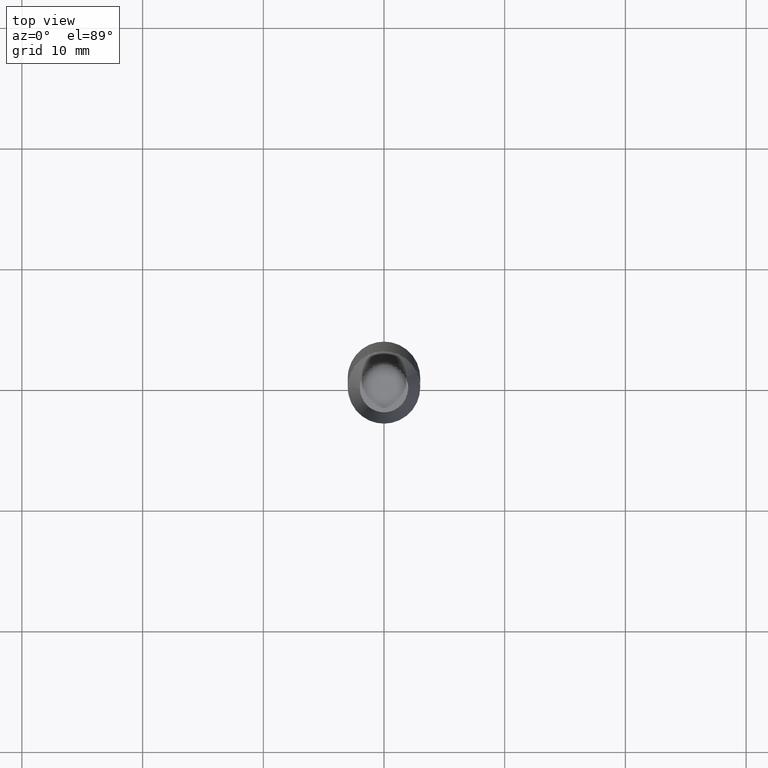
[diagram: clean part render]
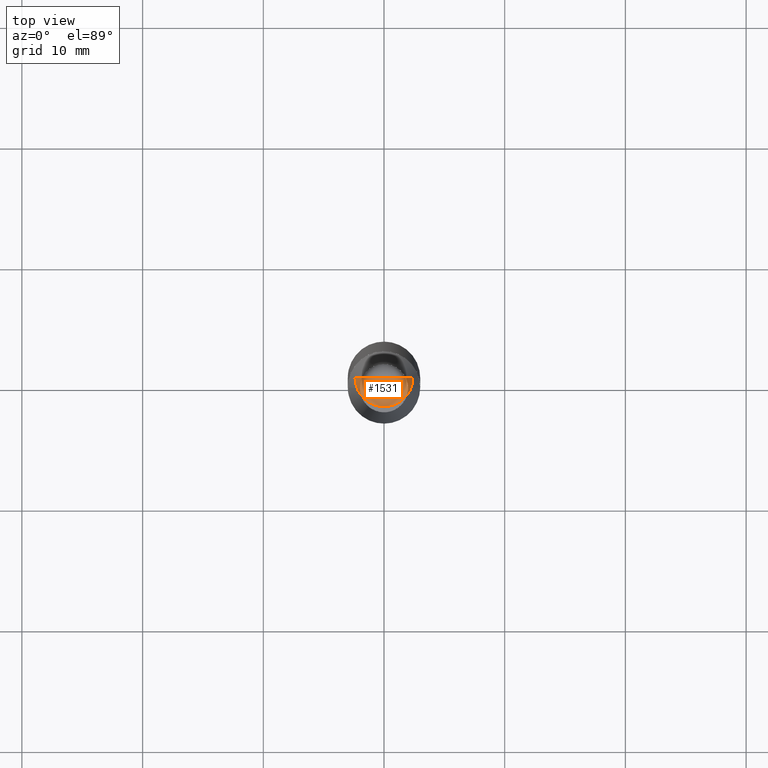
[diagram: same view with one face highlighted and labeled with its STEP entity id]
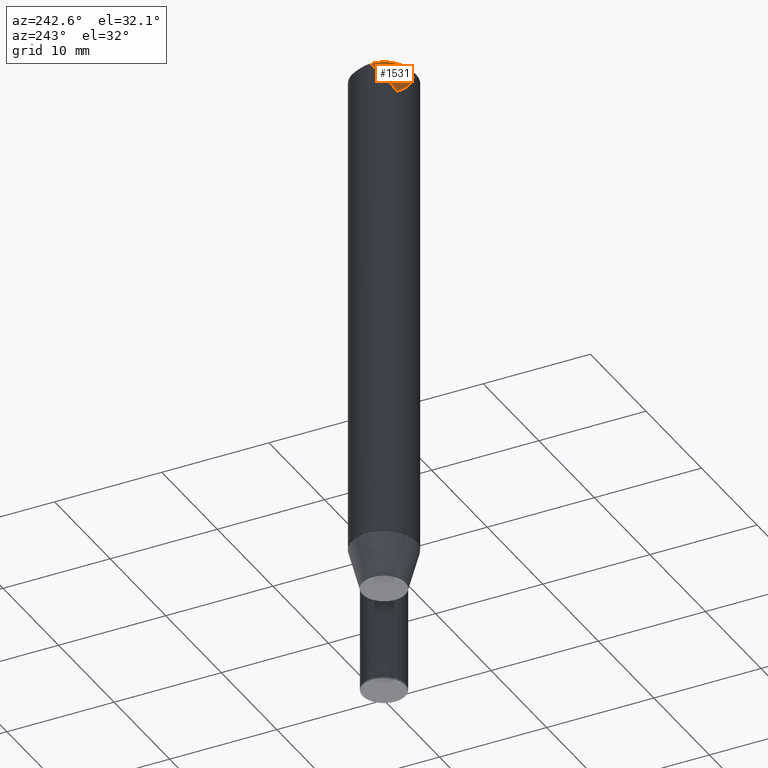
[diagram: same view with one face highlighted and labeled with its STEP entity id]
A machine part, top view. The second image highlights one B-rep face of the part: STEP entity #1531.
A second angle (auxiliary view) of the same face is appended — the face is thin or edge-on in the first view.
In plain terms, the highlighted face is a freeform B-spline surface patch.
Its self-contained STEP definition (entity closure, byte-faithful):
#1176=CARTESIAN_POINT('',(2.4,0.0,46.267949192431));
#1180=CARTESIAN_POINT('',(-2.4,0.0,46.267949192431));
#1181=CARTESIAN_POINT('',(0.0,0.0,46.267949192431));
#1188=CARTESIAN_POINT('',(-2.4,-2.4,46.267949192431));
#1189=CARTESIAN_POINT('',(0.0,-2.4,46.267949192431));
#1190=CARTESIAN_POINT('',(2.4,-2.4,46.267949192431));
#1516=(
BOUNDED_SURFACE()
B_SPLINE_SURFACE(1,2,(
(#1180,#1188,#1189,#1190,#1176),
(#1181,#1181,#1181,#1181,#1181)
), .UNSPECIFIED.,.F.,.F.,.F.)
B_SPLINE_SURFACE_WITH_KNOTS((2,2),(3,2,3),(
0.0,1.0),(
0.0,0.5,1.0), .UNSPECIFIED.)
GEOMETRIC_REPRESENTATION_ITEM()
RATIONAL_B_SPLINE_SURFACE(((1.0,0.707106781187,1.0,0.707106781187,1.0),
(1.0,0.707106781187,1.0,0.707106781187,1.0)
))
REPRESENTATION_ITEM('')
SURFACE()
);
#1517=(
BOUNDED_CURVE()
B_SPLINE_CURVE(1,(#1181,#1176),.UNSPECIFIED.,.F.,.F.)
B_SPLINE_CURVE_WITH_KNOTS((2,2),
(0.0,1.0),.UNSPECIFIED.)
CURVE()
GEOMETRIC_REPRESENTATION_ITEM()
RATIONAL_B_SPLINE_CURVE((1.0,1.0))
REPRESENTATION_ITEM('')
);
#1518=(
BOUNDED_CURVE()
B_SPLINE_CURVE(2,(#1176,#1190,#1189,#1188,#1180),.UNSPECIFIED.,.F.,.F.)
B_SPLINE_CURVE_WITH_KNOTS((3,2,3),
(0.0,0.5,1.0),.UNSPECIFIED.)
CURVE()
GEOMETRIC_REPRESENTATION_ITEM()
RATIONAL_B_SPLINE_CURVE((1.0,0.707106781187,1.0,0.707106781187,1.0))
REPRESENTATION_ITEM('')
);
#1519=(
BOUNDED_CURVE()
B_SPLINE_CURVE(1,(#1180,#1181),.UNSPECIFIED.,.F.,.F.)
B_SPLINE_CURVE_WITH_KNOTS((2,2),
(0.0,1.0),.UNSPECIFIED.)
CURVE()
GEOMETRIC_REPRESENTATION_ITEM()
RATIONAL_B_SPLINE_CURVE((1.0,1.0))
REPRESENTATION_ITEM('')
);
#1520=VERTEX_POINT('',#1176);
#1521=VERTEX_POINT('',#1180);
#1522=VERTEX_POINT('',#1181);
#1523=EDGE_CURVE('',#1522,#1520,#1517,.T.);
#1524=EDGE_CURVE('',#1520,#1521,#1518,.T.);
#1525=EDGE_CURVE('',#1521,#1522,#1519,.T.);
#1526=ORIENTED_EDGE('',*,*,#1523,.T.);
#1527=ORIENTED_EDGE('',*,*,#1524,.T.);
#1528=ORIENTED_EDGE('',*,*,#1525,.T.);
#1529=EDGE_LOOP('',(#1526,#1527,#1528));
#1530=FACE_OUTER_BOUND('',#1529,.T.);
#1531=ADVANCED_FACE('',(#1530),#1516,.T.);